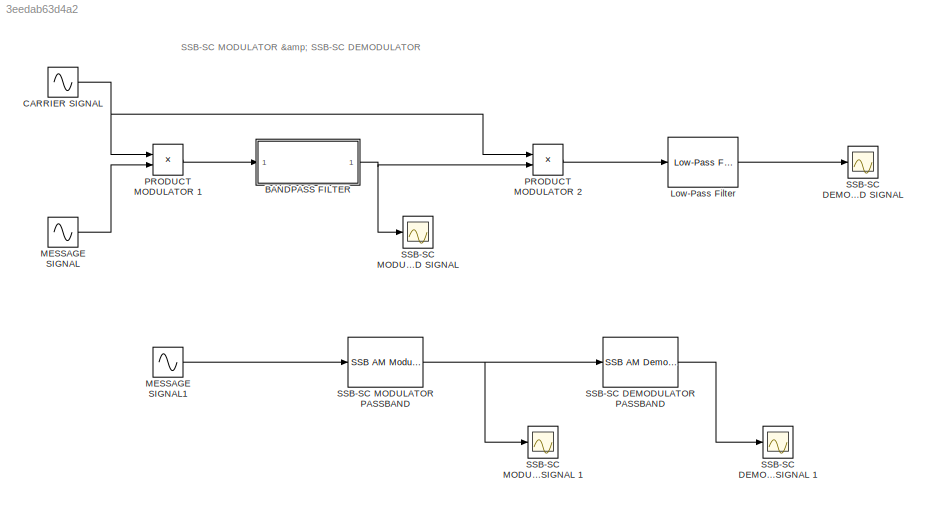
MODEL slx_3eedab63d4a2
KIND model
CONFIG AbsTol = auto
CONFIG EnableMultiTasking = off
CONFIG FixedStep = auto
CONFIG MaxStep = auto
CONFIG MinStep = auto
CONFIG RelTol = 1e-3
CONFIG SampleTimeConstraint = Unconstrained
CONFIG Solver = VariableStepAuto
CONFIG SolverName = VariableStepAuto
CONFIG StartTime = 0.0
CONFIG StopTime = 10.0
BLOCK [Reference]  Low-Pass Filter  REF=eeGeneralControl/Low-Pass Filter
(Discrete or Continuous)
  Ports = [1, 1]
  SourceBlock = eeGeneralControl/Low-Pass Filter\n(Discrete or Continuous)
  SourceProductBaseCode = PS
  SourceProductName = Simscape Electrical
  SourceType = Low-Pass Filter (Discrete or Continuous)
BLOCK [Reference]  SSB-SC DEMODULATOR PASSBAND  REF=commanapbnd3/SSB AM
Demodulator
Passband
  Ports = [1, 1]
  SourceBlock = commanapbnd3/SSB AM\nDemodulator\nPassband
  SourceProductBaseCode = CM
  SourceProductName = Communications Toolbox
  SourceType = SSB AM Demodulator Passband
BLOCK [Reference]  SSB-SC MODULATOR PASSBAND  REF=commanapbnd3/SSB AM
Modulator
Passband
  Ports = [1, 1]
  SourceBlock = commanapbnd3/SSB AM\nModulator\nPassband
  SourceProductBaseCode = CM
  SourceProductName = Communications Toolbox
  SourceType = SSB AM Modulator Passband
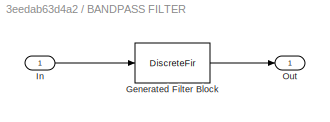
BLOCK [SubSystem] BANDPASS FILTER 
  CopyFcn = fdesignblkfcn(gcbh, {'CopyFcn'});
  DialogController = fdesignblkfcn
  InitFcn = fdesignblkfcn(gcbh, {'InitFcn'});
  Ports = [1, 1]
  RequestExecContextInheritance = off
  UserDataPersistent = on
BLOCK [DiscreteFir] BANDPASS FILTER /Generated Filter Block
  Coefficients = [-0.153489825895129439 0.0570452397846297199 -0.0542597268841885569 0.0412204175720009697 -0.0182634618102462121 -0.0125219920876095472 0.0472298298247487841 -0.0813874699807817653 0.110517022709823581 -0.129700597986994987 0.136532324109984449 -0.129700597986994987 0.110517022709823581 -0.0813874699807817653 0.0472298298247487841 -0.0125219920876095472 -0.0182634618102462121 0.0412204175720009697...<+68ch>
  InputPortMap = u0
  InputProcessing = Columns as channels (frame based)
  OutputPortMap = o0
  Ports = [1, 1]
  Tag = BlockMethodSubSystem
BLOCK [Inport] BANDPASS FILTER /In
  IconDisplay = Port number
BLOCK [Outport] BANDPASS FILTER /Out
  IconDisplay = Port number
  VectorParamsAs1DForOutWhenUnconnected = off
BLOCK [Sin] CARRIER SIGNAL
  Frequency = 2*pi*10
  Ports = [0, 1]
  SampleTime = 0.001
BLOCK [Sin] MESSAGE SIGNAL
  Frequency = 2*pi*1
  Ports = [0, 1]
  SampleTime = 0.001
BLOCK [Sin] MESSAGE SIGNAL1
  Frequency = 2*pi*1
  Ports = [0, 1]
  SampleTime = 0.001
BLOCK [Product] PRODUCT MODULATOR 1
  InputSameDT = off
  OutDataTypeStr = Inherit: Inherit via internal rule
  Ports = [2, 1]
  RndMeth = Floor
  SaturateOnIntegerOverflow = off
BLOCK [Product] PRODUCT MODULATOR 2
  InputSameDT = off
  OutDataTypeStr = Inherit: Inherit via internal rule
  Ports = [2, 1]
  RndMeth = Floor
  SaturateOnIntegerOverflow = off
BLOCK [Scope] SSB-SC DEMODULATED SIGNAL
  Floating = off
  NumInputPorts = 1
  Ports = [1]
  ScopeSpecificationString = Simulink.scopes.TimeScopeBlockCfg('CurrentConfiguration', extmgr.ConfigurationSet(extmgr.Configuration('Core','General UI',true),extmgr.Configuration('Core','Source UI',true),extmgr.Configuration('Sources','WiredSimulink',true,'DataLoggingVariableName','ScopeData1'),extmgr.Configuration('Visuals','Time Domain',true,'SerializedDisplays',{struct('MinYLimReal','-0.13109','MaxYLimReal','0.13925','YLab...<+1445ch>
BLOCK [Scope] SSB-SC DEMODULATED SIGNAL 1
  Floating = off
  NumInputPorts = 1
  Ports = [1]
  ScopeSpecificationString = Simulink.scopes.TimeScopeBlockCfg('CurrentConfiguration', extmgr.ConfigurationSet(extmgr.Configuration('Core','General UI',true),extmgr.Configuration('Core','Source UI',true),extmgr.Configuration('Sources','WiredSimulink',true,'DataLoggingVariableName','ScopeData1'),extmgr.Configuration('Visuals','Time Domain',true,'SerializedDisplays',{struct('MinYLimReal','-0.11401','MaxYLimReal','0.12528','YLab...<+1413ch>
BLOCK [Scope] SSB-SC MODULATED SIGNAL
  Floating = off
  NumInputPorts = 1
  Ports = [1]
  ScopeSpecificationString = Simulink.scopes.TimeScopeBlockCfg('CurrentConfiguration', extmgr.ConfigurationSet(extmgr.Configuration('Core','General UI',true),extmgr.Configuration('Core','Source UI',true),extmgr.Configuration('Sources','WiredSimulink',true),extmgr.Configuration('Visuals','Time Domain',true,'SerializedDisplays',{struct('MinYLimReal','-0.13109','MaxYLimReal','0.13925','YLabelReal','','MinYLimMag','0.00000','MaxY...<+1382ch>
BLOCK [Scope] SSB-SC MODULATED SIGNAL 1
  Floating = off
  NumInputPorts = 1
  Ports = [1]
  ScopeSpecificationString = Simulink.scopes.TimeScopeBlockCfg('CurrentConfiguration', extmgr.ConfigurationSet(extmgr.Configuration('Core','General UI',true),extmgr.Configuration('Core','Source UI',true),extmgr.Configuration('Sources','WiredSimulink',true,'DataLoggingVariableName','ScopeData2'),extmgr.Configuration('Visuals','Time Domain',true,'SerializedDisplays',{struct('MinYLimReal','-1.24753','MaxYLimReal','1.24753','YLab...<+1411ch>
ANNOTATION (root): SSB-SC MODULATOR & SSB-SC DEMODULATOR
LINE  Low-Pass Filter:1 -> SSB-SC DEMODULATED SIGNAL:1
LINE  SSB-SC DEMODULATOR PASSBAND:1 -> SSB-SC DEMODULATED SIGNAL 1:1
NET  SSB-SC MODULATOR PASSBAND:1 ->  SSB-SC DEMODULATOR PASSBAND:1, SSB-SC MODULATED SIGNAL 1:1
NET BANDPASS FILTER :1 -> PRODUCT MODULATOR 2:2, SSB-SC MODULATED SIGNAL:1
NET CARRIER SIGNAL:1 -> PRODUCT MODULATOR 1:1, PRODUCT MODULATOR 2:1
LINE MESSAGE SIGNAL1:1 ->  SSB-SC MODULATOR PASSBAND:1
LINE MESSAGE SIGNAL:1 -> PRODUCT MODULATOR 1:2
LINE PRODUCT MODULATOR 1:1 -> BANDPASS FILTER :1
LINE PRODUCT MODULATOR 2:1 ->  Low-Pass Filter:1
note: NET lines group one-source signal fan-out (src -> all destinations, sorted); 1:1 wires keep LINE
